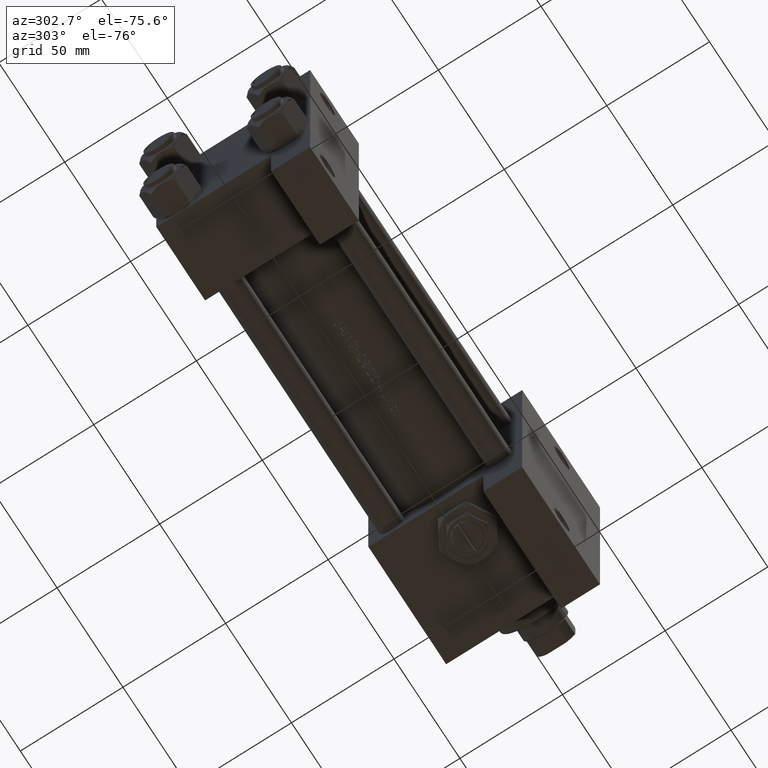
[diagram: clean part render]
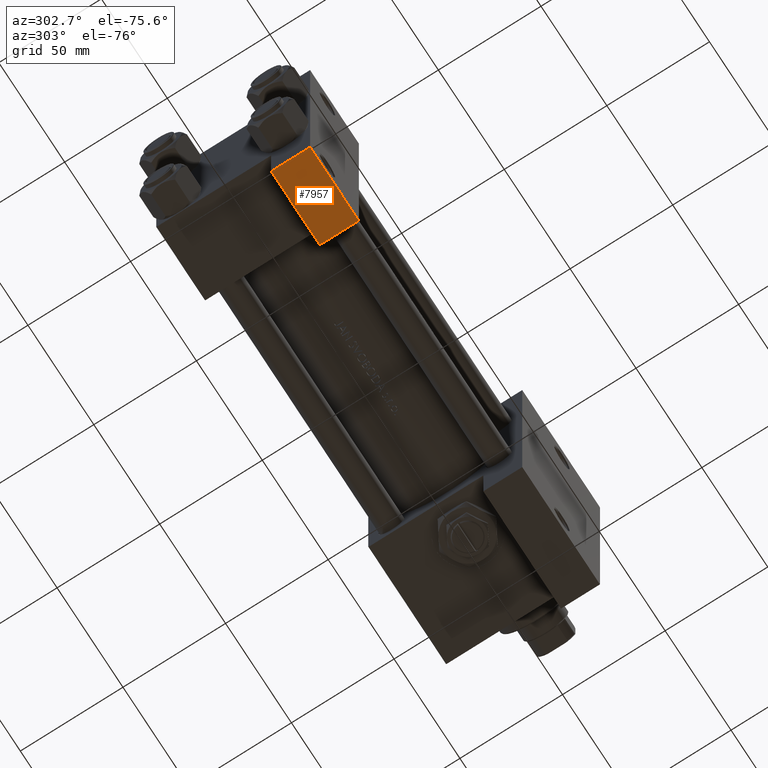
[diagram: same view with one face highlighted and labeled with its STEP entity id]
A machine part, auxiliary view. The second image highlights one B-rep face of the part: STEP entity #7957.
In plain terms, the highlighted planar face has unit normal (0, -0, -1).
Its self-contained STEP definition (entity closure, byte-faithful):
#1065 = VECTOR ( 'NONE', #2936, 1000.000000000000000 ) ;
#1861 = EDGE_CURVE ( 'NONE', #13879, #38512, #32330, .T. ) ;
#2691 = CARTESIAN_POINT ( 'NONE',  ( 1.595073532467135441E-14, 63.50000000000001421, 26.72167621838005047 ) ) ;
#2936 = DIRECTION ( 'NONE',  ( -1.000000000000000000, 0.000000000000000000, 0.000000000000000000 ) ) ;
#3176 = DIRECTION ( 'NONE',  ( 0.000000000000000000, 1.734723475976806848E-16, 1.000000000000000000 ) ) ;
#3797 = CARTESIAN_POINT ( 'NONE',  ( 37.00000000000001421, 63.50000000000000000, -37.50000000000002132 ) ) ;
#4462 = ORIENTED_EDGE ( 'NONE', *, *, #10905, .F. ) ;
#4465 = CARTESIAN_POINT ( 'NONE',  ( 37.00000000000001421, 63.50000000000000000, -18.50000000000000355 ) ) ;
#5069 = VECTOR ( 'NONE', #30035, 1000.000000000000000 ) ;
#6301 = ORIENTED_EDGE ( 'NONE', *, *, #11377, .F. ) ;
#7957 = ADVANCED_FACE ( 'NONE', ( #13166 ), #39828, .T. ) ;
#10888 = CARTESIAN_POINT ( 'NONE',  ( 1.595073532467135441E-14, 63.50000000000000000, -18.50000000000000355 ) ) ;
#10905 = EDGE_CURVE ( 'NONE', #13879, #33045, #14622, .T. ) ;
#11377 = EDGE_CURVE ( 'NONE', #15370, #38512, #40971, .T. ) ;
#13166 = FACE_OUTER_BOUND ( 'NONE', #43793, .T. ) ;
#13619 = ORIENTED_EDGE ( 'NONE', *, *, #1861, .T. ) ;
#13879 = VERTEX_POINT ( 'NONE', #4465 ) ;
#14326 = LINE ( 'NONE', #43998, #40492 ) ;
#14622 = LINE ( 'NONE', #10888, #1065 ) ;
#15370 = VERTEX_POINT ( 'NONE', #26183 ) ;
#17105 = DIRECTION ( 'NONE',  ( 0.000000000000000000, -1.734723475976806848E-16, -1.000000000000000000 ) ) ;
#24752 = ORIENTED_EDGE ( 'NONE', *, *, #31692, .F. ) ;
#26041 = CARTESIAN_POINT ( 'NONE',  ( 1.595073532467135441E-14, 63.50000000000000000, -37.50000000000002132 ) ) ;
#26183 = CARTESIAN_POINT ( 'NONE',  ( 1.595073532467135441E-14, 63.50000000000000000, -37.50000000000002132 ) ) ;
#29606 = DIRECTION ( 'NONE',  ( 0.000000000000000000, 1.000000000000000000, -1.734723475976806848E-16 ) ) ;
#30035 = DIRECTION ( 'NONE',  ( 1.000000000000000000, 0.000000000000000000, 0.000000000000000000 ) ) ;
#31692 = EDGE_CURVE ( 'NONE', #33045, #15370, #14326, .T. ) ;
#32330 = LINE ( 'NONE', #47500, #40661 ) ;
#33045 = VERTEX_POINT ( 'NONE', #36666 ) ;
#36300 = DIRECTION ( 'NONE',  ( 0.000000000000000000, -1.734723475976806848E-16, -1.000000000000000000 ) ) ;
#36666 = CARTESIAN_POINT ( 'NONE',  ( 1.595073532467135441E-14, 63.50000000000000000, -18.50000000000000355 ) ) ;
#36789 = AXIS2_PLACEMENT_3D ( 'NONE', #2691, #29606, #3176 ) ;
#38512 = VERTEX_POINT ( 'NONE', #3797 ) ;
#39828 = PLANE ( 'NONE',  #36789 ) ;
#40492 = VECTOR ( 'NONE', #17105, 1000.000000000000000 ) ;
#40661 = VECTOR ( 'NONE', #36300, 1000.000000000000000 ) ;
#40971 = LINE ( 'NONE', #26041, #5069 ) ;
#43793 = EDGE_LOOP ( 'NONE', ( #4462, #13619, #6301, #24752 ) ) ;
#43998 = CARTESIAN_POINT ( 'NONE',  ( 1.595073532467135441E-14, 63.50000000000001421, 26.72167621838005047 ) ) ;
#47500 = CARTESIAN_POINT ( 'NONE',  ( 37.00000000000001421, 63.50000000000001421, 26.72167621838005047 ) ) ;